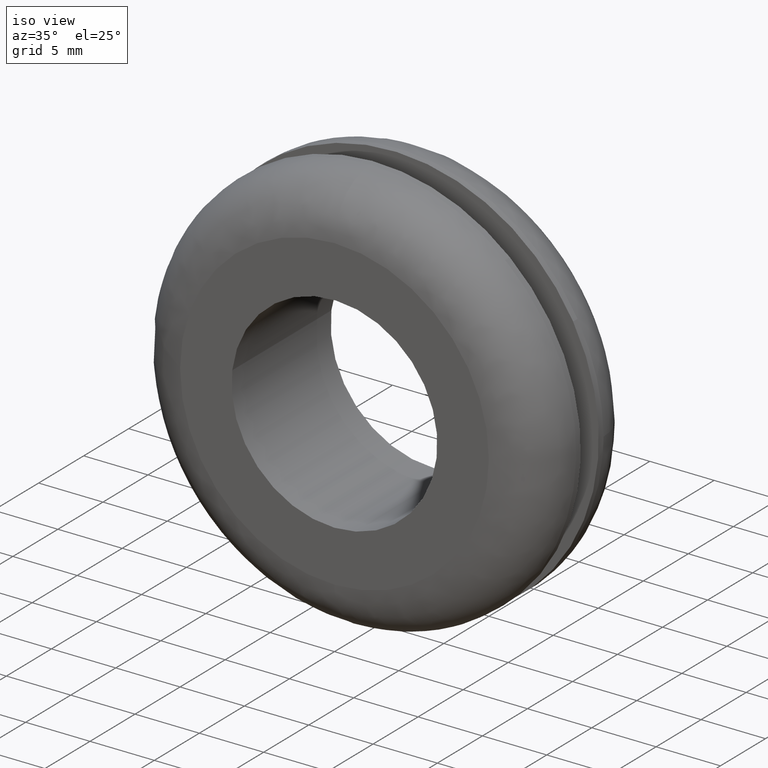
[diagram: clean part render]
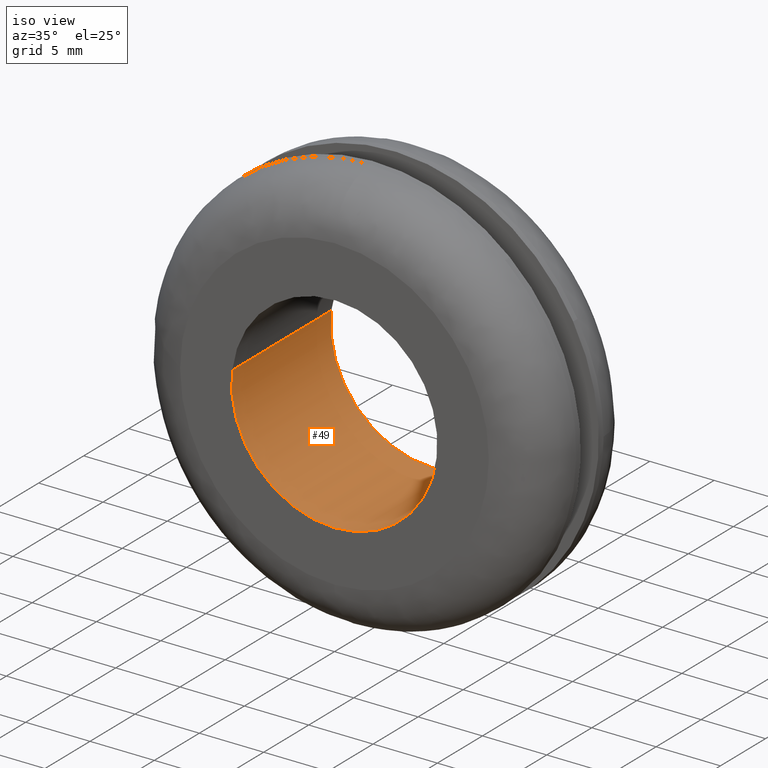
[diagram: same view with one face highlighted and labeled with its STEP entity id]
A machine part, iso view. The second image highlights one B-rep face of the part: STEP entity #49.
In plain terms, the highlighted cylindrical surface (partial cylindrical patch) has radius 8 mm, axis along (0, 1, 0).
Its self-contained STEP definition (entity closure, byte-faithful):
#49=ADVANCED_FACE('',(#151),#150,.F.);
#150=CYLINDRICAL_SURFACE('',#272,8.00000000000E+000);
#151=FACE_OUTER_BOUND('',#273,.T.);
#269=CARTESIAN_POINT('',(1.23418033852E-014,1.12750000000E+001,1.17706449627E-013));
#270=DIRECTION('',(2.20908782232E-015,1.00000000000E+000,2.04660102562E-014));
#271=DIRECTION('',(-9.93009526364E-001,-2.22044604925E-016,1.18034234657E-001));
#272=AXIS2_PLACEMENT_3D('',#269,#270,#271);
#273=EDGE_LOOP('',(#438,#439,#440,#441,#442,#443));
#438=ORIENTED_EDGE('',*,*,#499,.F.);
#439=ORIENTED_EDGE('',*,*,#501,.F.);
#440=ORIENTED_EDGE('',*,*,#517,.F.);
#441=ORIENTED_EDGE('',*,*,#504,.T.);
#442=ORIENTED_EDGE('',*,*,#506,.T.);
#443=ORIENTED_EDGE('',*,*,#518,.T.);
#499=EDGE_CURVE('',#637,#638,#639,.T.);
#501=EDGE_CURVE('',#645,#637,#652,.T.);
#504=EDGE_CURVE('',#672,#673,#674,.T.);
#506=EDGE_CURVE('',#673,#680,#687,.T.);
#517=EDGE_CURVE('',#672,#645,#759,.T.);
#518=EDGE_CURVE('',#680,#638,#765,.T.);
#637=VERTEX_POINT('',#931);
#638=VERTEX_POINT('',#932);
#639=CIRCLE('',#936,8.00000000000E+000);
#645=VERTEX_POINT('',#937);
#652=CIRCLE('',#945,8.00000000000E+000);
#672=VERTEX_POINT('',#956);
#673=VERTEX_POINT('',#957);
#674=CIRCLE('',#961,8.00000000000E+000);
#680=VERTEX_POINT('',#962);
#687=CIRCLE('',#970,8.00000000000E+000);
#759=(BOUNDED_CURVE() B_SPLINE_CURVE(1,(#1009,#1010),.UNSPECIFIED.,.F.,.F.) B_SPLINE_CURVE_WITH_KNOTS((2,2),(8.33333343261E-002,9.16666667006E-001),.UNSPECIFIED.) CURVE() GEOMETRIC_REPRESENTATION_ITEM() RATIONAL_B_SPLINE_CURVE((1.00000000000E+000,1.00000000000E+000)) REPRESENTATION_ITEM('') );
#765=(BOUNDED_CURVE() B_SPLINE_CURVE(1,(#1011,#1012),.UNSPECIFIED.,.F.,.F.) B_SPLINE_CURVE_WITH_KNOTS((2,2),(8.33333333333E-002,9.16666666667E-001),.UNSPECIFIED.) CURVE() GEOMETRIC_REPRESENTATION_ITEM() RATIONAL_B_SPLINE_CURVE((7.50000000000E-001,7.50000000000E-001)) REPRESENTATION_ITEM('') );
#931=CARTESIAN_POINT('',(-2.22044604925E-015,1.10000000000E+001,-8.00000000000E+000));
#932=CARTESIAN_POINT('',(7.94391288725E+000,1.10000000000E+001,-9.45646889616E-001));
#933=CARTESIAN_POINT('',(6.56807941368E-013,1.10000000000E+001,1.44151357517E-012));
#934=DIRECTION('',(-2.46291158757E-015,-1.00000000000E+000,-1.88391052431E-014));
#935=DIRECTION('',(-8.20177259442E-014,1.88391052431E-014,-1.00000000000E+000));
#936=AXIS2_PLACEMENT_3D('',#933,#934,#935);
#937=CARTESIAN_POINT('',(-7.94407655622E+000,1.10000000000E+001,9.44270972151E-001));
#942=CARTESIAN_POINT('',(6.56807941368E-013,1.10000000000E+001,1.44151357517E-012));
#943=DIRECTION('',(-2.46291158757E-015,-1.00000000000E+000,-1.88391052431E-014));
#944=DIRECTION('',(-8.20177259442E-014,1.88391052431E-014,-1.00000000000E+000));
#945=AXIS2_PLACEMENT_3D('',#942,#943,#944);
#956=CARTESIAN_POINT('',(-7.94407655622E+000,-3.12885132196E-019,9.44270972151E-001));
#957=CARTESIAN_POINT('',(1.11022302463E-015,1.19089438809E-014,-8.00000000000E+000));
#958=CARTESIAN_POINT('',(6.39932551394E-013,-3.67537609491E-016,1.40554234918E-012));
#959=DIRECTION('',(-2.28631402335E-016,-1.00000000000E+000,-1.53456018630E-015));
#960=DIRECTION('',(-7.94780907754E-014,1.53456018630E-015,-1.00000000000E+000));
#961=AXIS2_PLACEMENT_3D('',#958,#959,#960);
#962=CARTESIAN_POINT('',(7.94391288725E+000,-7.32613485815E-016,-9.45646889616E-001));
#967=CARTESIAN_POINT('',(6.39932551394E-013,-3.67537609491E-016,1.40554234918E-012));
#968=DIRECTION('',(-2.28631402335E-016,-1.00000000000E+000,-1.53456018630E-015));
#969=DIRECTION('',(-7.94780907754E-014,1.53456018630E-015,-1.00000000000E+000));
#970=AXIS2_PLACEMENT_3D('',#967,#968,#969);
#1009=CARTESIAN_POINT('',(-7.94407621091E+000,1.31040411855E-008,9.44273877254E-001));
#1010=CARTESIAN_POINT('',(-7.94407621091E+000,1.10000000045E+001,9.44273877254E-001));
#1011=CARTESIAN_POINT('',(7.94407621091E+000,-4.41128615118E-014,-9.44273877254E-001));
#1012=CARTESIAN_POINT('',(7.94407621091E+000,1.10000000000E+001,-9.44273877254E-001));